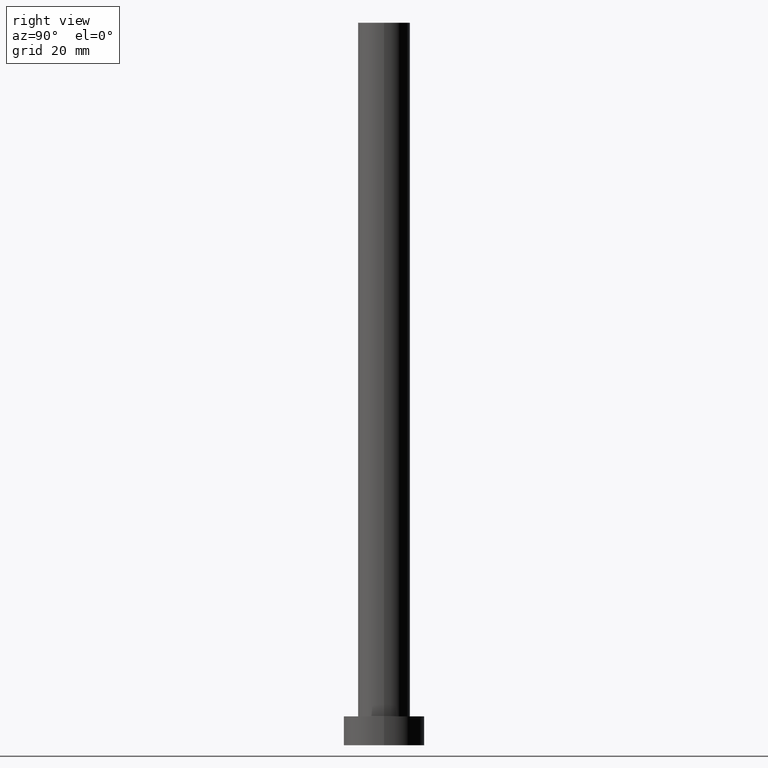
[diagram: clean part render]
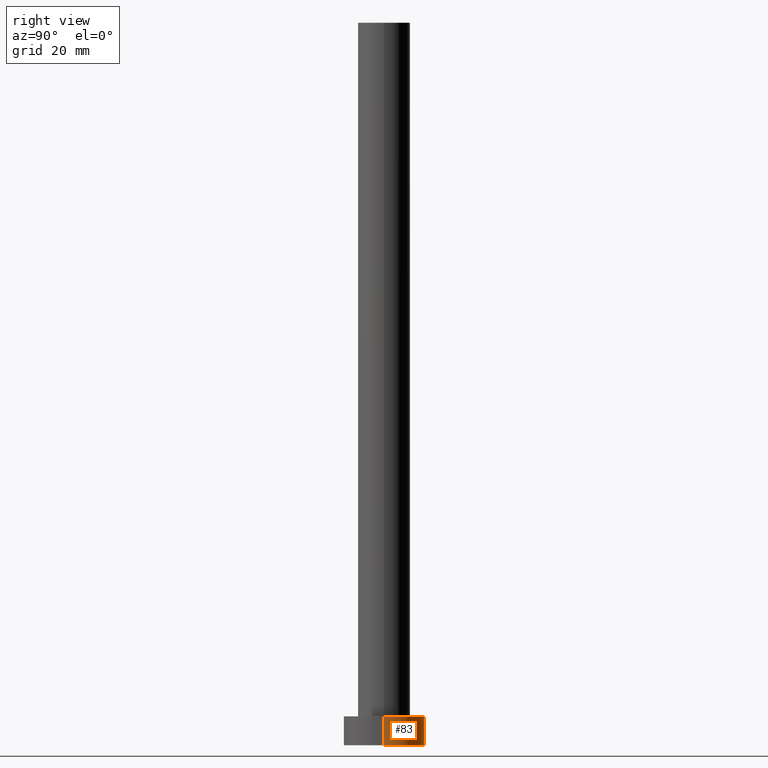
[diagram: same view with one face highlighted and labeled with its STEP entity id]
A machine part, right view. The second image highlights one B-rep face of the part: STEP entity #83.
In plain terms, the highlighted cylindrical surface (partial cylindrical patch) has radius 7 mm, axis along (-0, -0, -1).
Its self-contained STEP definition (entity closure, byte-faithful):
#7 = CARTESIAN_POINT ( 'NONE',  ( -7.000000000000000000, 0.000000000000000000, 5.000000000000000000 ) ) ;
#9 = CARTESIAN_POINT ( 'NONE',  ( -7.000000000000000000, 0.000000000000000000, 0.000000000000000000 ) ) ;
#23 = EDGE_CURVE ( 'NONE', #164, #81, #188, .T. ) ;
#27 = EDGE_CURVE ( 'NONE', #177, #42, #112, .T. ) ;
#42 = VERTEX_POINT ( 'NONE', #7 ) ;
#44 = DIRECTION ( 'NONE',  ( 1.000000000000000000, 0.000000000000000000, 0.000000000000000000 ) ) ;
#47 = DIRECTION ( 'NONE',  ( 1.000000000000000000, 0.000000000000000000, 0.000000000000000000 ) ) ;
#51 = CYLINDRICAL_SURFACE ( 'NONE', #203, 7.000000000000000000 ) ;
#57 = AXIS2_PLACEMENT_3D ( 'NONE', #202, #63, #47 ) ;
#63 = DIRECTION ( 'NONE',  ( 0.000000000000000000, 0.000000000000000000, 1.000000000000000000 ) ) ;
#64 = ORIENTED_EDGE ( 'NONE', *, *, #156, .T. ) ;
#81 = VERTEX_POINT ( 'NONE', #9 ) ;
#83 = ADVANCED_FACE ( 'NONE', ( #230 ), #51, .T. ) ;
#91 = CARTESIAN_POINT ( 'NONE',  ( 0.000000000000000000, 0.000000000000000000, 5.000000000000000000 ) ) ;
#95 = VECTOR ( 'NONE', #135, 1000.000000000000000 ) ;
#112 = CIRCLE ( 'NONE', #57, 7.000000000000000000 ) ;
#115 = LINE ( 'NONE', #150, #122 ) ;
#122 = VECTOR ( 'NONE', #246, 1000.000000000000000 ) ;
#130 = CARTESIAN_POINT ( 'NONE',  ( 7.000000000000000000, 8.572527594031473190E-16, 0.000000000000000000 ) ) ;
#135 = DIRECTION ( 'NONE',  ( -0.000000000000000000, -0.000000000000000000, -1.000000000000000000 ) ) ;
#148 = LINE ( 'NONE', #210, #95 ) ;
#150 = CARTESIAN_POINT ( 'NONE',  ( 7.000000000000000000, 8.572527594031473190E-16, 5.000000000000000000 ) ) ;
#156 = EDGE_CURVE ( 'NONE', #177, #164, #115, .T. ) ;
#162 = ORIENTED_EDGE ( 'NONE', *, *, #23, .T. ) ;
#164 = VERTEX_POINT ( 'NONE', #130 ) ;
#177 = VERTEX_POINT ( 'NONE', #190 ) ;
#180 = ORIENTED_EDGE ( 'NONE', *, *, #27, .F. ) ;
#187 = DIRECTION ( 'NONE',  ( -1.000000000000000000, 0.000000000000000000, 0.000000000000000000 ) ) ;
#188 = CIRCLE ( 'NONE', #196, 7.000000000000000000 ) ;
#190 = CARTESIAN_POINT ( 'NONE',  ( 7.000000000000000000, 8.572527594031473190E-16, 5.000000000000000000 ) ) ;
#196 = AXIS2_PLACEMENT_3D ( 'NONE', #224, #221, #44 ) ;
#200 = EDGE_LOOP ( 'NONE', ( #180, #64, #162, #205 ) ) ;
#202 = CARTESIAN_POINT ( 'NONE',  ( 0.000000000000000000, 0.000000000000000000, 5.000000000000000000 ) ) ;
#203 = AXIS2_PLACEMENT_3D ( 'NONE', #91, #231, #187 ) ;
#205 = ORIENTED_EDGE ( 'NONE', *, *, #244, .F. ) ;
#210 = CARTESIAN_POINT ( 'NONE',  ( -7.000000000000000000, 0.000000000000000000, 5.000000000000000000 ) ) ;
#221 = DIRECTION ( 'NONE',  ( 0.000000000000000000, 0.000000000000000000, 1.000000000000000000 ) ) ;
#224 = CARTESIAN_POINT ( 'NONE',  ( 0.000000000000000000, 0.000000000000000000, 0.000000000000000000 ) ) ;
#230 = FACE_OUTER_BOUND ( 'NONE', #200, .T. ) ;
#231 = DIRECTION ( 'NONE',  ( -0.000000000000000000, -0.000000000000000000, -1.000000000000000000 ) ) ;
#244 = EDGE_CURVE ( 'NONE', #42, #81, #148, .T. ) ;
#246 = DIRECTION ( 'NONE',  ( -0.000000000000000000, -0.000000000000000000, -1.000000000000000000 ) ) ;